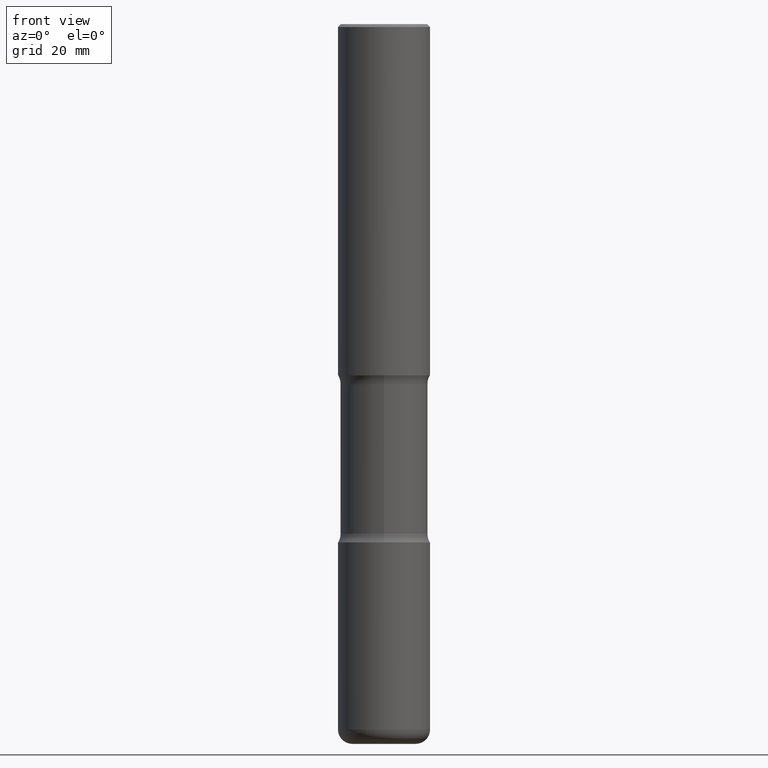
[diagram: clean part render]
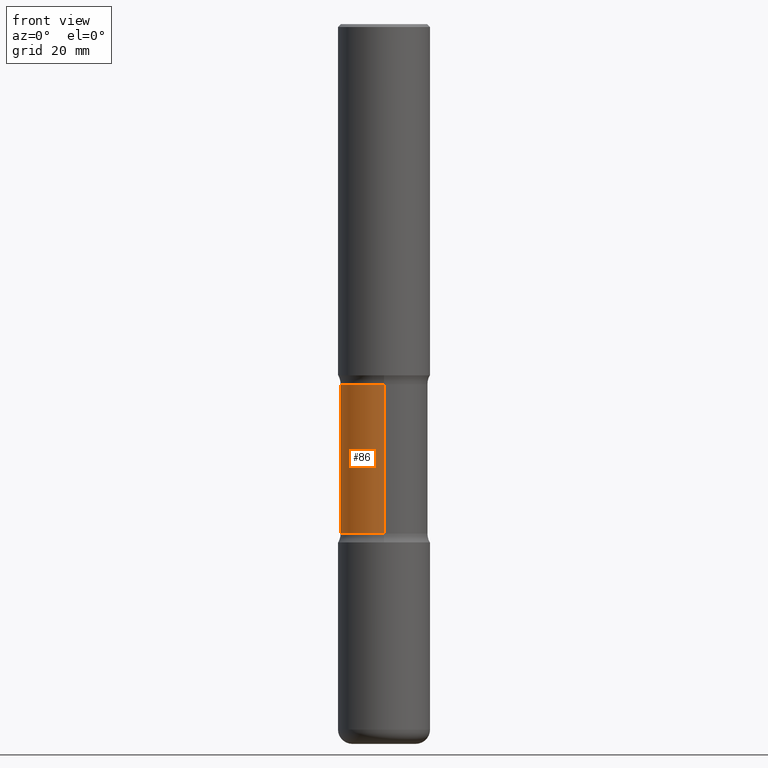
[diagram: same view with one face highlighted and labeled with its STEP entity id]
A machine part, front view. The second image highlights one B-rep face of the part: STEP entity #86.
In plain terms, the highlighted cylindrical surface (partial cylindrical patch) has radius 7.5997 mm, axis along (0, -0, -1).
Its self-contained STEP definition (entity closure, byte-faithful):
#3 = AXIS2_PLACEMENT_3D ( 'NONE', #388, #259, #338 ) ;
#27 = VERTEX_POINT ( 'NONE', #135 ) ;
#66 = CIRCLE ( 'NONE', #3, 0.2992000000000000215 ) ;
#86 = ADVANCED_FACE ( 'NONE', ( #319 ), #506, .T. ) ;
#99 = VECTOR ( 'NONE', #514, 39.37007874015748143 ) ;
#112 = AXIS2_PLACEMENT_3D ( 'NONE', #538, #457, #376 ) ;
#135 = CARTESIAN_POINT ( 'NONE',  ( -2.106687422665607929E-15, -0.2992000000000121784, -3.482559259964995491 ) ) ;
#151 = ORIENTED_EDGE ( 'NONE', *, *, #475, .T. ) ;
#191 = EDGE_CURVE ( 'NONE', #427, #407, #371, .T. ) ;
#207 = CARTESIAN_POINT ( 'NONE',  ( 2.089302433163852292E-15, 0.2991999999999829796, -4.921300000000002228 ) ) ;
#259 = DIRECTION ( 'NONE',  ( 2.514961011121466661E-29, -3.391964546123646738E-15, -1.000000000000000000 ) ) ;
#263 = CARTESIAN_POINT ( 'NONE',  ( 2.089302433163790366E-15, 0.2991999999999913062, -2.462340740035006359 ) ) ;
#291 = CARTESIAN_POINT ( 'NONE',  ( 1.213064589428117588E-28, -1.704549297248130466E-14, -4.921300000000000452 ) ) ;
#300 = VECTOR ( 'NONE', #429, 39.37007874015748143 ) ;
#302 = LINE ( 'NONE', #207, #300 ) ;
#319 = FACE_OUTER_BOUND ( 'NONE', #378, .T. ) ;
#335 = ORIENTED_EDGE ( 'NONE', *, *, #191, .T. ) ;
#338 = DIRECTION ( 'NONE',  ( 6.982962677686265922E-15, 1.000000000000000000, -3.652203200085913145E-15 ) ) ;
#371 = CIRCLE ( 'NONE', #112, 0.2992000000000000215 ) ;
#376 = DIRECTION ( 'NONE',  ( 6.982962677686265922E-15, 1.000000000000000000, -3.652203200085913145E-15 ) ) ;
#378 = EDGE_LOOP ( 'NONE', ( #485, #335, #151, #435 ) ) ;
#384 = EDGE_CURVE ( 'NONE', #27, #480, #66, .T. ) ;
#388 = CARTESIAN_POINT ( 'NONE',  ( 8.512269027981096619E-29, -1.216533539121887276E-14, -3.482559259964996379 ) ) ;
#407 = VERTEX_POINT ( 'NONE', #263 ) ;
#417 = AXIS2_PLACEMENT_3D ( 'NONE', #291, #459, #539 ) ;
#427 = VERTEX_POINT ( 'NONE', #513 ) ;
#429 = DIRECTION ( 'NONE',  ( 2.514961011121466661E-29, -3.391964546123647133E-15, -1.000000000000000000 ) ) ;
#435 = ORIENTED_EDGE ( 'NONE', *, *, #384, .F. ) ;
#457 = DIRECTION ( 'NONE',  ( 2.514961011121466661E-29, -3.391964546123646738E-15, -1.000000000000000000 ) ) ;
#459 = DIRECTION ( 'NONE',  ( 2.514961011121466661E-29, -3.391964546123646738E-15, -1.000000000000000000 ) ) ;
#475 = EDGE_CURVE ( 'NONE', #407, #480, #302, .T. ) ;
#480 = VERTEX_POINT ( 'NONE', #551 ) ;
#484 = LINE ( 'NONE', #520, #99 ) ;
#485 = ORIENTED_EDGE ( 'NONE', *, *, #533, .F. ) ;
#506 = CYLINDRICAL_SURFACE ( 'NONE', #417, 0.2992000000000000215 ) ;
#513 = CARTESIAN_POINT ( 'NONE',  ( -2.106687422665635539E-15, -0.2992000000000087367, -2.462340740035004139 ) ) ;
#514 = DIRECTION ( 'NONE',  ( 2.514961011121466661E-29, -3.391964546123647133E-15, -1.000000000000000000 ) ) ;
#520 = CARTESIAN_POINT ( 'NONE',  ( -2.052661000933121010E-15, -0.2992000000000170634, -4.921299999999999564 ) ) ;
#533 = EDGE_CURVE ( 'NONE', #427, #27, #484, .T. ) ;
#538 = CARTESIAN_POINT ( 'NONE',  ( 5.946459227533120264E-29, -8.704790342317601483E-15, -2.462340740035005471 ) ) ;
#539 = DIRECTION ( 'NONE',  ( 6.982962677686265922E-15, 1.000000000000000000, -3.652203200085913145E-15 ) ) ;
#551 = CARTESIAN_POINT ( 'NONE',  ( 2.089302433163816004E-15, 0.2991999999999878646, -3.482559259964997711 ) ) ;